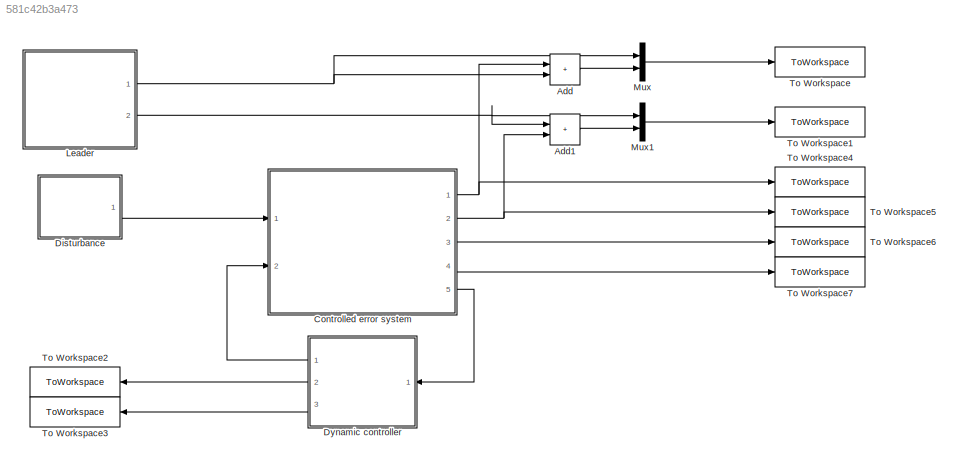
MODEL slx_581c42b3a473
KIND model
CONFIG AbsTol = auto
CONFIG EnableMultiTasking = off
CONFIG FixedStep = 0.01
CONFIG MaxStep = auto
CONFIG MinStep = auto
CONFIG RelTol = 1e-3
CONFIG SampleTimeConstraint = Unconstrained
CONFIG SolverName = FixedStepAuto
CONFIG StartTime = 0.0
CONFIG StopTime = 60
BLOCK [Sum] Add
  IconShape = rectangular
  Ports = [2, 1]
BLOCK [Sum] Add1
  IconShape = rectangular
  Ports = [2, 1]
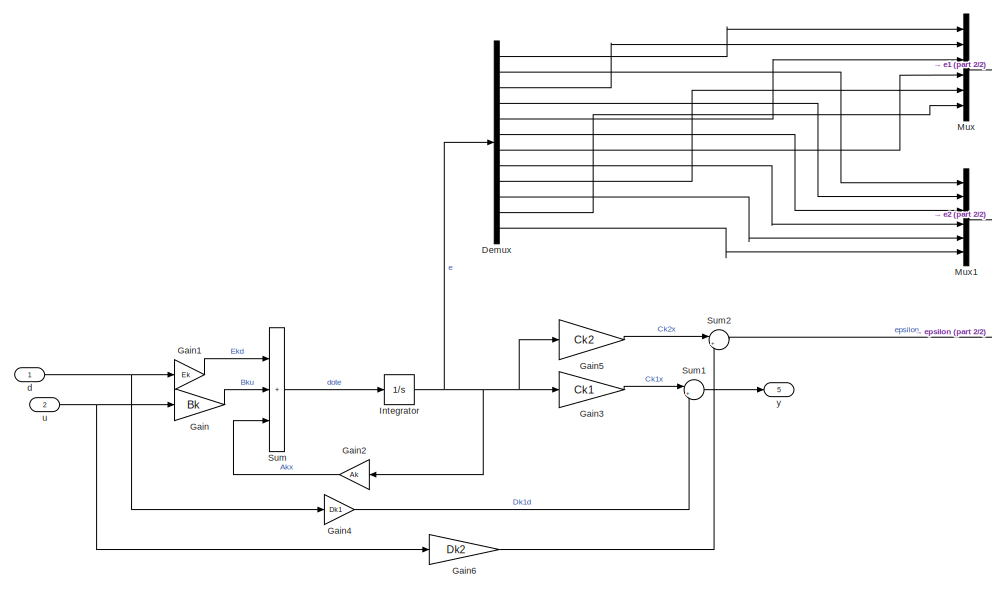
[diagram: Controlled error system - part 1/2, left side, full height]
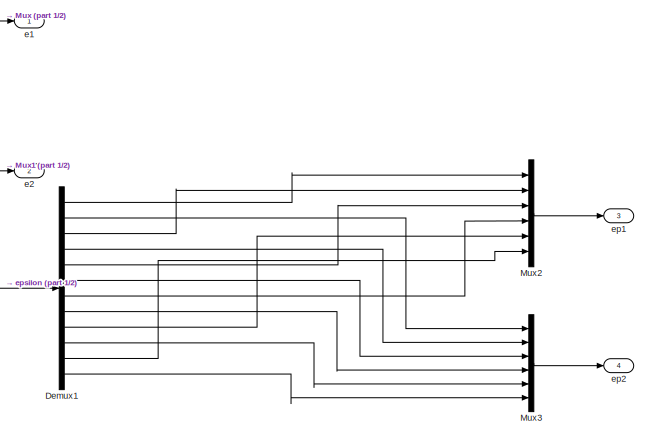
[diagram: Controlled error system - part 2/2, middle right region]
BLOCK [SubSystem] Controlled error system
  Ports = [2, 5]
  RequestExecContextInheritance = off
BLOCK [Demux] Controlled error system/Demux
  Outputs = 12
  Ports = [1, 12]
BLOCK [Demux] Controlled error system/Demux1
  Outputs = 12
  Ports = [1, 12]
BLOCK [Gain] Controlled error system/Gain
  Gain = Bk
  Multiplication = Matrix(K*u) (u vector)
BLOCK [Gain] Controlled error system/Gain1
  Gain = Ek
  Multiplication = Matrix(K*u) (u vector)
BLOCK [Gain] Controlled error system/Gain2
  Gain = Ak
  Multiplication = Matrix(K*u) (u vector)
  NameLocation = top
BLOCK [Gain] Controlled error system/Gain3
  Gain = Ck1
  Multiplication = Matrix(K*u) (u vector)
BLOCK [Gain] Controlled error system/Gain4
  Gain = Dk1
  Multiplication = Matrix(K*u) (u vector)
BLOCK [Gain] Controlled error system/Gain5
  Gain = Ck2
  Multiplication = Matrix(K*u) (u vector)
BLOCK [Gain] Controlled error system/Gain6
  Gain = Dk2
  Multiplication = Matrix(K*u) (u vector)
BLOCK [Integrator] Controlled error system/Integrator
  InitialCondition = Xint
  Ports = [1, 1]
BLOCK [Mux] Controlled error system/Mux
  DisplayOption = bar
  Inputs = 6
  Ports = [6, 1]
BLOCK [Mux] Controlled error system/Mux1
  DisplayOption = bar
  Inputs = 6
  Ports = [6, 1]
BLOCK [Mux] Controlled error system/Mux2
  DisplayOption = bar
  Inputs = 6
  Ports = [6, 1]
BLOCK [Mux] Controlled error system/Mux3
  DisplayOption = bar
  Inputs = 6
  Ports = [6, 1]
BLOCK [Sum] Controlled error system/Sum
  IconShape = rectangular
  Inputs = |+++
  Ports = [3, 1]
BLOCK [Sum] Controlled error system/Sum1
  Inputs = |++
  Ports = [2, 1]
BLOCK [Sum] Controlled error system/Sum2
  Inputs = |++
  NameLocation = top
  Ports = [2, 1]
BLOCK [Inport] Controlled error system/d
BLOCK [Outport] Controlled error system/e1
BLOCK [Outport] Controlled error system/e2
  Port = 2
BLOCK [Outport] Controlled error system/ep1
  Port = 3
BLOCK [Outport] Controlled error system/ep2
  Port = 4
BLOCK [Inport] Controlled error system/u
  Port = 2
BLOCK [Outport] Controlled error system/y
  Port = 5
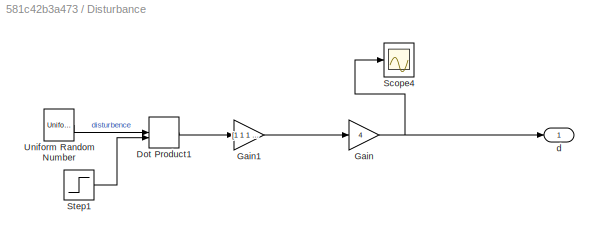
BLOCK [SubSystem] Disturbance
  Ports = [0, 1]
  RequestExecContextInheritance = off
BLOCK [DotProduct] Disturbance/Dot Product1
  OutDataTypeStr = Inherit: Inherit via internal rule
BLOCK [Gain] Disturbance/Gain
  Gain = 4
BLOCK [Gain] Disturbance/Gain1
  Gain = [1 1 1 1 1 1 1 1 1 1 1 1]'
BLOCK [Scope] Disturbance/Scope4
  Floating = off
  NumInputPorts = 1
  Ports = [1]
  ScopeSpecificationString = Simulink.scopes.TimeScopeBlockCfg('CurrentConfiguration', extmgr.ConfigurationSet(extmgr.Configuration('Core','General UI',true,'FigureColor',[1 1 1]),extmgr.Configuration('Core','Source UI',true),extmgr.Configuration('Sources','WiredSimulink',true),extmgr.Configuration('Visuals','Time Domain',true,'SerializedDisplays',{struct('MinYLimReal','-12.48526','MaxYLimReal','12.48631','YLabelReal','','Min...<+1943ch>
BLOCK [Step] Disturbance/Step1
  After = 0
  Before = 1
  SampleTime = 0
  Time = 100000
BLOCK [UniformRandomNumber] Disturbance/Uniform Random Number
  SampleTime = 0.1
BLOCK [Outport] Disturbance/d
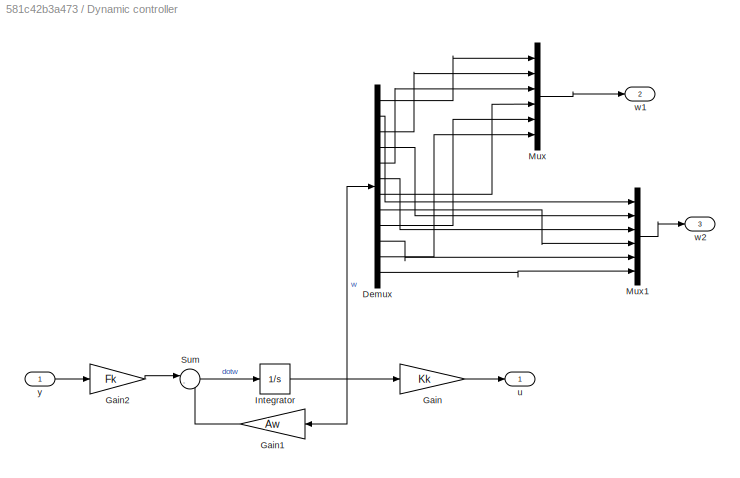
BLOCK [SubSystem] Dynamic controller
  Ports = [1, 3]
  RequestExecContextInheritance = off
BLOCK [Demux] Dynamic controller/Demux
  Outputs = 12
  Ports = [1, 12]
BLOCK [Gain] Dynamic controller/Gain
  Gain = Kk
  Multiplication = Matrix(K*u) (u vector)
BLOCK [Gain] Dynamic controller/Gain1
  Gain = Aw
  Multiplication = Matrix(K*u) (u vector)
  NameLocation = top
BLOCK [Gain] Dynamic controller/Gain2
  Gain = Fk
  Multiplication = Matrix(K*u) (u vector)
BLOCK [Integrator] Dynamic controller/Integrator
  Ports = [1, 1]
BLOCK [Mux] Dynamic controller/Mux
  DisplayOption = bar
  Inputs = 6
  Ports = [6, 1]
BLOCK [Mux] Dynamic controller/Mux1
  DisplayOption = bar
  Inputs = 6
  Ports = [6, 1]
BLOCK [Sum] Dynamic controller/Sum
  Inputs = |-+
  Ports = [2, 1]
BLOCK [Outport] Dynamic controller/u
BLOCK [Outport] Dynamic controller/w1
  Port = 2
BLOCK [Outport] Dynamic controller/w2
  Port = 3
BLOCK [Inport] Dynamic controller/y
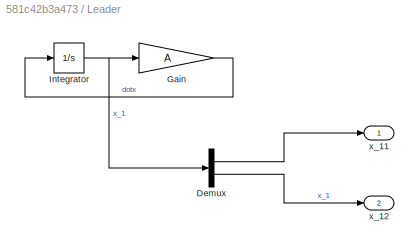
BLOCK [SubSystem] Leader
  Ports = [0, 2]
  RequestExecContextInheritance = off
BLOCK [Demux] Leader/Demux
  Outputs = 2
  Ports = [1, 2]
BLOCK [Gain] Leader/Gain
  Gain = A
  Multiplication = Matrix(K*u) (u vector)
BLOCK [Integrator] Leader/Integrator
  InitialCondition = [2.5,7.5]'
  Ports = [1, 1]
BLOCK [Outport] Leader/x_11
BLOCK [Outport] Leader/x_12
  Port = 2
BLOCK [Mux] Mux
  DisplayOption = bar
  Inputs = 2
  Ports = [2, 1]
BLOCK [Mux] Mux1
  DisplayOption = bar
  Inputs = 2
  Ports = [2, 1]
BLOCK [ToWorkspace] To Workspace
  FixptAsFi = on
  MaxDataPoints = inf
  Ports = [1]
  SampleTime = -1
  VariableName = x11
BLOCK [ToWorkspace] To Workspace1
  FixptAsFi = on
  MaxDataPoints = inf
  Ports = [1]
  SampleTime = -1
  VariableName = x12
BLOCK [ToWorkspace] To Workspace2
  FixptAsFi = on
  MaxDataPoints = inf
  Ports = [1]
  SampleTime = -1
  VariableName = w1
BLOCK [ToWorkspace] To Workspace3
  FixptAsFi = on
  MaxDataPoints = inf
  Ports = [1]
  SampleTime = -1
  VariableName = w2
BLOCK [ToWorkspace] To Workspace4
  FixptAsFi = on
  MaxDataPoints = inf
  Ports = [1]
  SampleTime = -1
  VariableName = e1
BLOCK [ToWorkspace] To Workspace5
  FixptAsFi = on
  MaxDataPoints = inf
  Ports = [1]
  SampleTime = -1
  VariableName = e2
BLOCK [ToWorkspace] To Workspace6
  FixptAsFi = on
  MaxDataPoints = inf
  Ports = [1]
  SampleTime = -1
  VariableName = ep1
BLOCK [ToWorkspace] To Workspace7
  FixptAsFi = on
  MaxDataPoints = inf
  Ports = [1]
  SampleTime = -1
  VariableName = ep2
LINE Add1:1 -> Mux1:2
LINE Add:1 -> Mux:2
LINE Controlled error system/Demux1:1 -> Controlled error system/Mux2:1
LINE Controlled error system/Demux1:10 -> Controlled error system/Mux3:5
LINE Controlled error system/Demux1:11 -> Controlled error system/Mux2:6
LINE Controlled error system/Demux1:12 -> Controlled error system/Mux3:6
LINE Controlled error system/Demux1:2 -> Controlled error system/Mux3:1
LINE Controlled error system/Demux1:3 -> Controlled error system/Mux2:2
LINE Controlled error system/Demux1:4 -> Controlled error system/Mux3:2
LINE Controlled error system/Demux1:5 -> Controlled error system/Mux2:3
LINE Controlled error system/Demux1:6 -> Controlled error system/Mux3:3
LINE Controlled error system/Demux1:7 -> Controlled error system/Mux2:4
LINE Controlled error system/Demux1:8 -> Controlled error system/Mux3:4
LINE Controlled error system/Demux1:9 -> Controlled error system/Mux2:5
LINE Controlled error system/Demux:1 -> Controlled error system/Mux:1
LINE Controlled error system/Demux:10 -> Controlled error system/Mux1:5
LINE Controlled error system/Demux:11 -> Controlled error system/Mux:6
LINE Controlled error system/Demux:12 -> Controlled error system/Mux1:6
LINE Controlled error system/Demux:2 -> Controlled error system/Mux1:1
LINE Controlled error system/Demux:3 -> Controlled error system/Mux:2
LINE Controlled error system/Demux:4 -> Controlled error system/Mux1:2
LINE Controlled error system/Demux:5 -> Controlled error system/Mux:3
LINE Controlled error system/Demux:6 -> Controlled error system/Mux1:3
LINE Controlled error system/Demux:7 -> Controlled error system/Mux:4
LINE Controlled error system/Demux:8 -> Controlled error system/Mux1:4
LINE Controlled error system/Demux:9 -> Controlled error system/Mux:5
LINE Controlled error system/Gain1:1 -> Controlled error system/Sum:1
LINE Controlled error system/Gain2:1 -> Controlled error system/Sum:3
LINE Controlled error system/Gain3:1 -> Controlled error system/Sum1:1
LINE Controlled error system/Gain4:1 -> Controlled error system/Sum1:2
LINE Controlled error system/Gain5:1 -> Controlled error system/Sum2:1
LINE Controlled error system/Gain6:1 -> Controlled error system/Sum2:2
LINE Controlled error system/Gain:1 -> Controlled error system/Sum:2
NET Controlled error system/Integrator:1 -> Controlled error system/Demux:1, Controlled error system/Gain2:1, Controlled error system/Gain3:1, Controlled error system/Gain5:1
LINE Controlled error system/Mux1:1 -> Controlled error system/e2:1
LINE Controlled error system/Mux2:1 -> Controlled error system/ep1:1
LINE Controlled error system/Mux3:1 -> Controlled error system/ep2:1
LINE Controlled error system/Mux:1 -> Controlled error system/e1:1
LINE Controlled error system/Sum1:1 -> Controlled error system/y:1
LINE Controlled error system/Sum2:1 -> Controlled error system/Demux1:1
LINE Controlled error system/Sum:1 -> Controlled error system/Integrator:1
NET Controlled error system/d:1 -> Controlled error system/Gain1:1, Controlled error system/Gain4:1
NET Controlled error system/u:1 -> Controlled error system/Gain6:1, Controlled error system/Gain:1
NET Controlled error system:1 -> Add:1, To Workspace4:1
NET Controlled error system:2 -> Add1:2, To Workspace5:1
LINE Controlled error system:3 -> To Workspace6:1
LINE Controlled error system:4 -> To Workspace7:1
LINE Controlled error system:5 -> Dynamic controller:1
LINE Disturbance/Dot Product1:1 -> Disturbance/Gain1:1
LINE Disturbance/Gain1:1 -> Disturbance/Gain:1
NET Disturbance/Gain:1 -> Disturbance/Scope4:1, Disturbance/d:1
LINE Disturbance/Step1:1 -> Disturbance/Dot Product1:2
LINE Disturbance/Uniform Random Number:1 -> Disturbance/Dot Product1:1
LINE Disturbance:1 -> Controlled error system:1
LINE Dynamic controller/Demux:1 -> Dynamic controller/Mux:1
LINE Dynamic controller/Demux:10 -> Dynamic controller/Mux1:5
LINE Dynamic controller/Demux:11 -> Dynamic controller/Mux:6
LINE Dynamic controller/Demux:12 -> Dynamic controller/Mux1:6
LINE Dynamic controller/Demux:2 -> Dynamic controller/Mux1:1
LINE Dynamic controller/Demux:3 -> Dynamic controller/Mux:2
LINE Dynamic controller/Demux:4 -> Dynamic controller/Mux1:2
LINE Dynamic controller/Demux:5 -> Dynamic controller/Mux:3
LINE Dynamic controller/Demux:6 -> Dynamic controller/Mux1:3
LINE Dynamic controller/Demux:7 -> Dynamic controller/Mux:4
LINE Dynamic controller/Demux:8 -> Dynamic controller/Mux1:4
LINE Dynamic controller/Demux:9 -> Dynamic controller/Mux:5
LINE Dynamic controller/Gain1:1 -> Dynamic controller/Sum:2
LINE Dynamic controller/Gain2:1 -> Dynamic controller/Sum:1
LINE Dynamic controller/Gain:1 -> Dynamic controller/u:1
NET Dynamic controller/Integrator:1 -> Dynamic controller/Demux:1, Dynamic controller/Gain1:1, Dynamic controller/Gain:1
LINE Dynamic controller/Mux1:1 -> Dynamic controller/w2:1
LINE Dynamic controller/Mux:1 -> Dynamic controller/w1:1
LINE Dynamic controller/Sum:1 -> Dynamic controller/Integrator:1
LINE Dynamic controller/y:1 -> Dynamic controller/Gain2:1
LINE Dynamic controller:1 -> Controlled error system:2
LINE Dynamic controller:2 -> To Workspace2:1
LINE Dynamic controller:3 -> To Workspace3:1
LINE Leader/Demux:1 -> Leader/x_11:1
LINE Leader/Demux:2 -> Leader/x_12:1
LINE Leader/Gain:1 -> Leader/Integrator:1
NET Leader/Integrator:1 -> Leader/Demux:1, Leader/Gain:1
NET Leader:1 -> Add:2, Mux:1
NET Leader:2 -> Add1:1, Mux1:1
LINE Mux1:1 -> To Workspace1:1
LINE Mux:1 -> To Workspace:1
note: NET lines group one-source signal fan-out (src -> all destinations, sorted); 1:1 wires keep LINE
